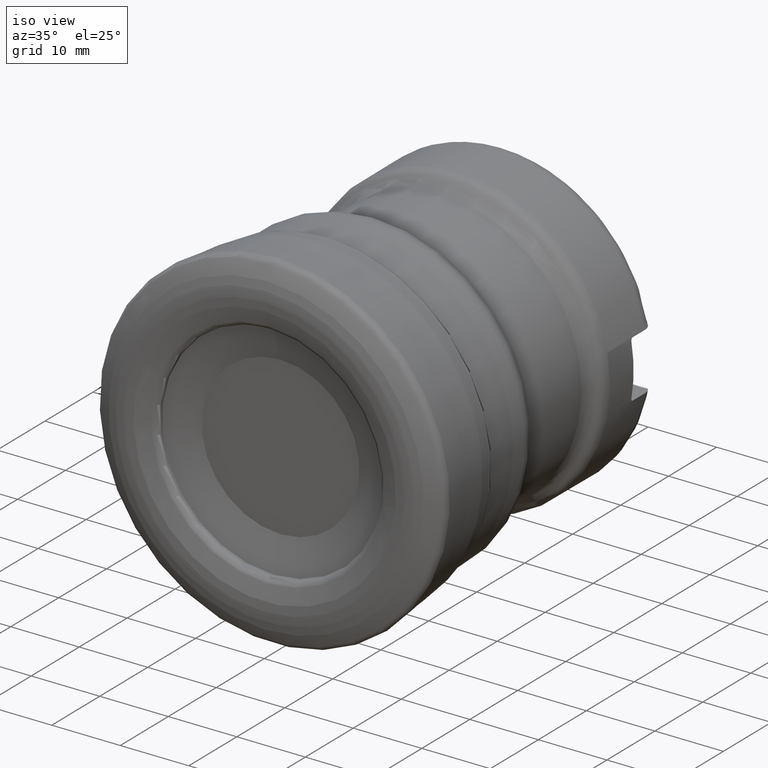
[diagram: clean part render]
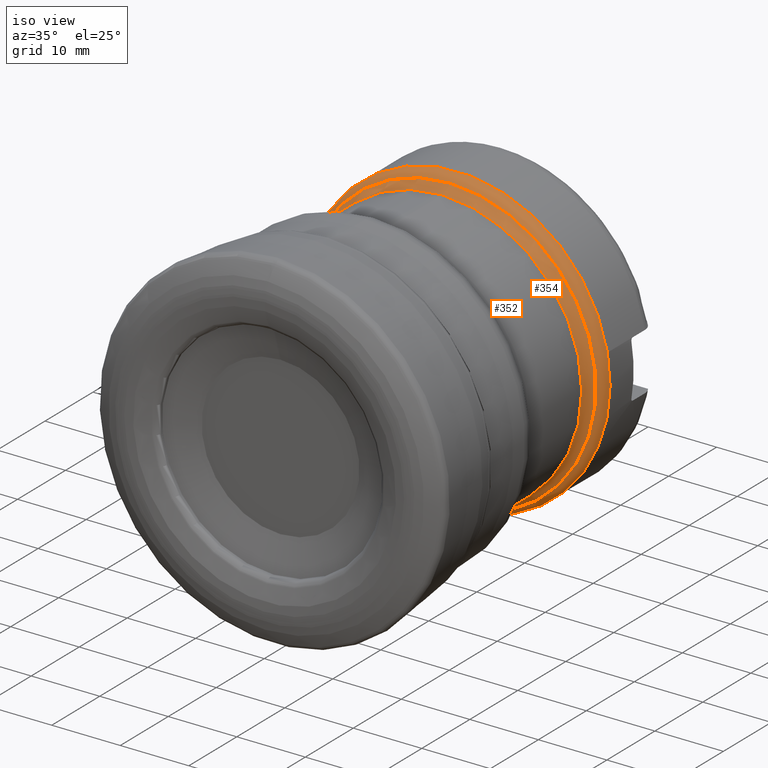
[diagram: same view with one multi-face feature highlighted, each face labeled with its STEP entity id]
A machine part, iso view. The highlighted faces form ONE feature: a constant-radius fillet chain: 2 tangent blend faces with common blend radius 2 mm. The faces share edges in the B-rep.
Their STEP definitions:
[1] entity #354 (Torus):
#189=TOROIDAL_SURFACE('',#1194,20.225,2.);
#354=ADVANCED_FACE('',(#443,#444),#189,.T.);
#443=FACE_BOUND('',#555,.T.);
#444=FACE_BOUND('',#556,.T.);
#555=EDGE_LOOP('',(#757));
#556=EDGE_LOOP('',(#758));
#757=ORIENTED_EDGE('',*,*,#1025,.F.);
#758=ORIENTED_EDGE('',*,*,#950,.F.);
#857=VERTEX_POINT('',#1523);
#916=VERTEX_POINT('',#1912);
#950=EDGE_CURVE('',#857,#857,#1065,.T.);
#1025=EDGE_CURVE('',#916,#916,#1096,.T.);
#1065=CIRCLE('',#1130,22.225);
#1096=CIRCLE('',#1191,21.3250000000001);
#1130=AXIS2_PLACEMENT_3D('',#1522,#1246,#1247);
#1191=AXIS2_PLACEMENT_3D('',#1911,#1388,#1389);
#1194=AXIS2_PLACEMENT_3D('',#1915,#1394,#1395);
#1246=DIRECTION('',(0.,1.,0.));
#1247=DIRECTION('',(0.,0.,-1.));
#1388=DIRECTION('',(0.,-1.,0.));
#1389=DIRECTION('',(0.,0.,-1.));
#1394=DIRECTION('',(0.,-1.,0.));
#1395=DIRECTION('',(0.,0.,-1.));
#1522=CARTESIAN_POINT('',(0.,40.3467275947744,0.));
#1523=CARTESIAN_POINT('',(0.,40.3467275947744,-22.225));
#1911=CARTESIAN_POINT('',(0.,38.6763982859253,0.));
#1912=CARTESIAN_POINT('',(0.,38.6763982859253,-21.3250000000001));
#1915=CARTESIAN_POINT('',(0.,40.3467275947744,0.));
[2] entity #352 (Torus):
#187=TOROIDAL_SURFACE('',#1192,22.425,2.);
#352=ADVANCED_FACE('',(#439,#440),#187,.F.);
#439=FACE_BOUND('',#551,.T.);
#440=FACE_BOUND('',#552,.T.);
#551=EDGE_LOOP('',(#753));
#552=EDGE_LOOP('',(#754));
#753=ORIENTED_EDGE('',*,*,#1025,.T.);
#754=ORIENTED_EDGE('',*,*,#979,.F.);
#884=VERTEX_POINT('',#1708);
#916=VERTEX_POINT('',#1912);
#979=EDGE_CURVE('',#884,#884,#1078,.T.);
#1025=EDGE_CURVE('',#916,#916,#1096,.T.);
#1078=CIRCLE('',#1149,20.425);
#1096=CIRCLE('',#1191,21.3250000000001);
#1149=AXIS2_PLACEMENT_3D('',#1707,#1288,#1289);
#1191=AXIS2_PLACEMENT_3D('',#1911,#1388,#1389);
#1192=AXIS2_PLACEMENT_3D('',#1913,#1390,#1391);
#1288=DIRECTION('',(0.,-1.,0.));
#1289=DIRECTION('',(0.,0.,1.));
#1388=DIRECTION('',(0.,-1.,0.));
#1389=DIRECTION('',(0.,0.,-1.));
#1390=DIRECTION('',(0.,1.,0.));
#1391=DIRECTION('',(0.,0.,1.));
#1707=CARTESIAN_POINT('',(0.,37.0060689770764,0.));
#1708=CARTESIAN_POINT('',(0.,37.0060689770764,20.425));
#1911=CARTESIAN_POINT('',(0.,38.6763982859253,0.));
#1912=CARTESIAN_POINT('',(0.,38.6763982859253,-21.3250000000001));
#1913=CARTESIAN_POINT('',(0.,37.0060689770764,0.));